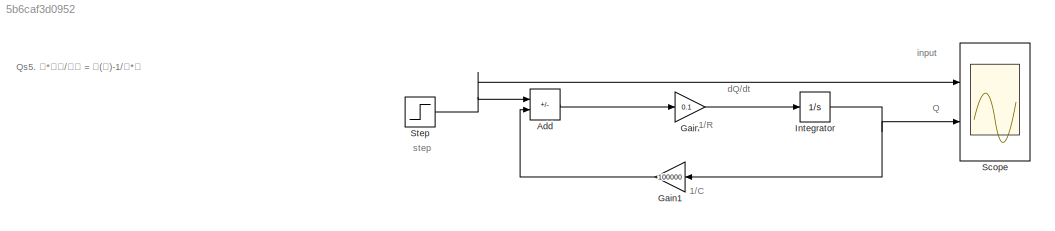
MODEL slx_5b6caf3d0952
KIND model
CONFIG AbsTol = auto
CONFIG EnableMultiTasking = off
CONFIG FixedStep = auto
CONFIG MaxStep = auto
CONFIG MinStep = auto
CONFIG RelTol = 1e-3
CONFIG SampleTimeConstraint = Unconstrained
CONFIG SolverName = VariableStepAuto
CONFIG StartTime = 0.0
CONFIG StopTime = 10.0
BLOCK [Sum] Add
  IconShape = rectangular
  Inputs = +-
  Ports = [2, 1]
BLOCK [Gain] Gain
  Gain = 0.1
BLOCK [Gain] Gain1
  Gain = 100000
  NameLocation = top
BLOCK [Integrator] Integrator
  Ports = [1, 1]
BLOCK [Scope] Scope
  Floating = off
  NumInputPorts = 2
  Ports = [2]
  ScopeSpecificationString = Simulink.scopes.TimeScopeBlockCfg('CurrentConfiguration', extmgr.ConfigurationSet(extmgr.Configuration('Core','General UI',true),extmgr.Configuration('Core','Source UI',true),extmgr.Configuration('Sources','WiredSimulink',true),extmgr.Configuration('Visuals','Time Domain',true,'SerializedDisplays',{struct('MinYLimReal','-0.125','MaxYLimReal','1.125','YLabelReal','','MinYLimMag','0.00000','MaxYLimM...<+1977ch>
BLOCK [Step] Step
  SampleTime = 0
ANNOTATION (root): 1/C
ANNOTATION (root): 1/R
ANNOTATION (root): Qs5. 𝑅*𝑑𝑄/𝑑𝑡 = 𝐸(𝑡)-1/𝐶*𝑄
ANNOTATION (root): Q
ANNOTATION (root): dQ/dt
ANNOTATION (root): input
ANNOTATION (root): step
LINE Add:1 -> Gain:1
LINE Gain1:1 -> Add:2
LINE Gain:1 -> Integrator:1
NET Integrator:1 -> Gain1:1, Scope:2
NET Step:1 -> Add:1, Scope:1
note: NET lines group one-source signal fan-out (src -> all destinations, sorted); 1:1 wires keep LINE
